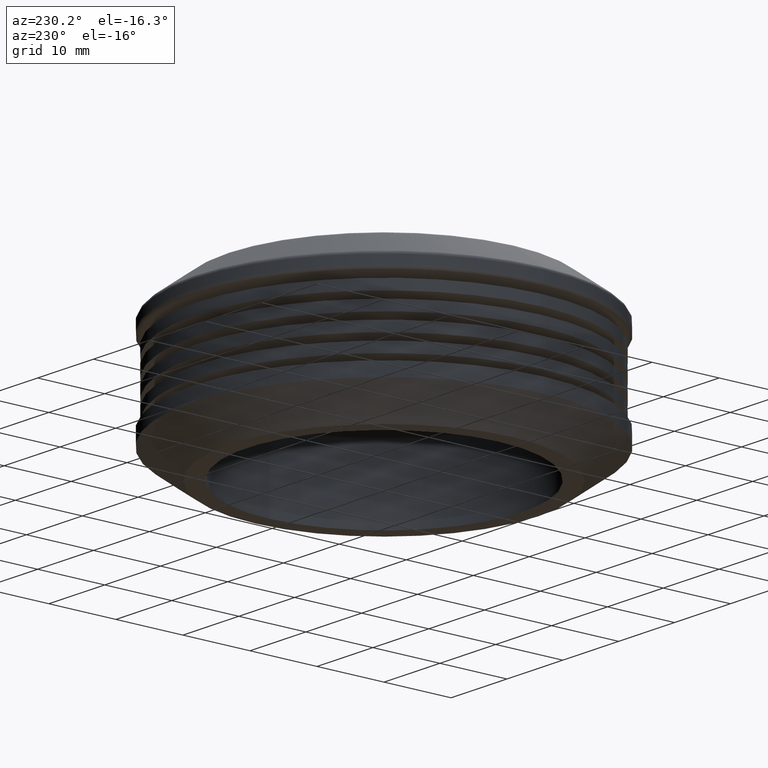
[diagram: clean part render]
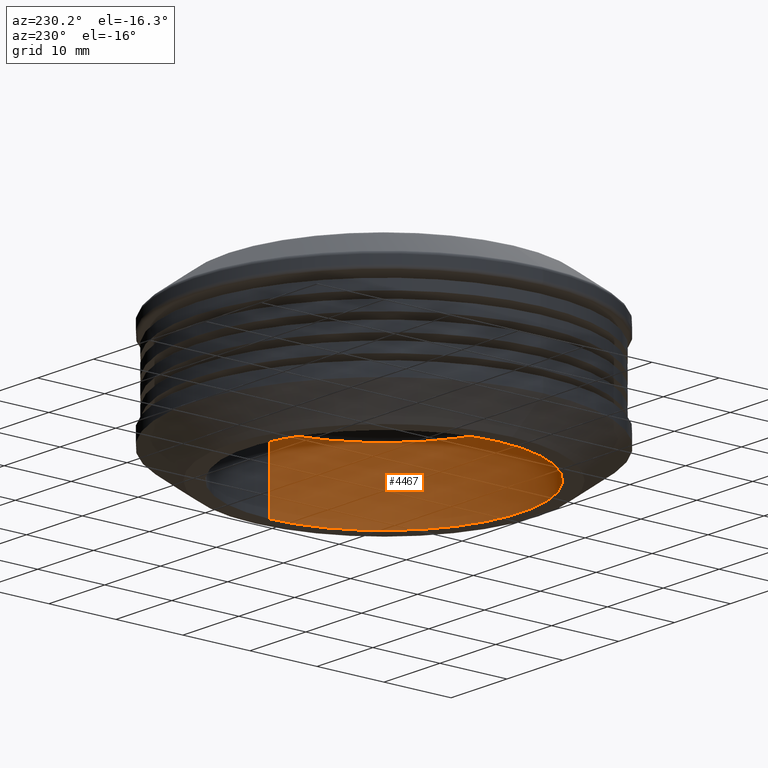
[diagram: same view with one face highlighted and labeled with its STEP entity id]
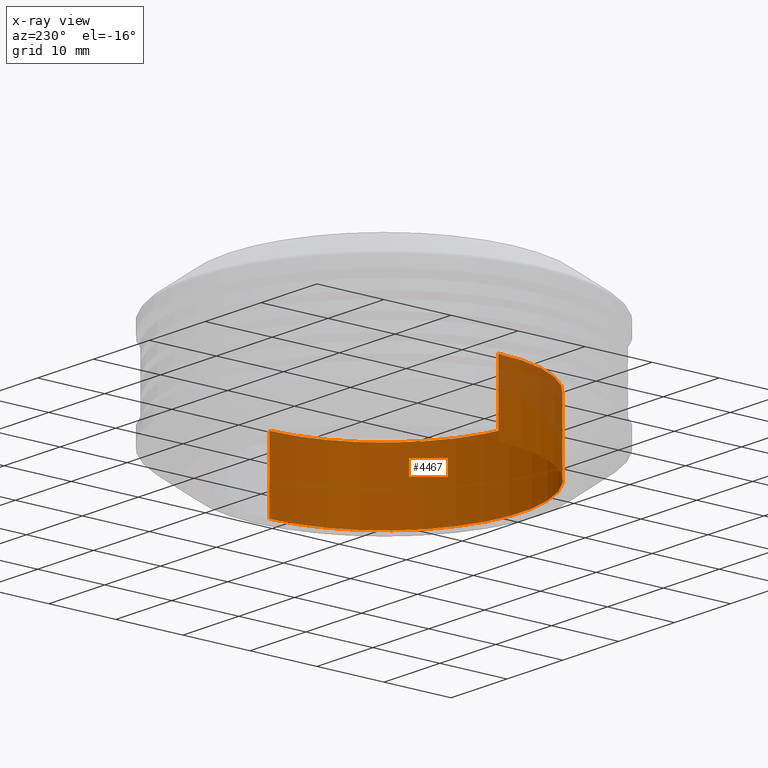
[diagram: x-ray of the same camera — body ghosted, the highlighted face saturated]
A machine part, auxiliary view. The second image highlights one B-rep face of the part: STEP entity #4467.
The next image is the same camera in x-ray: the body ghosted, the highlighted face saturated — about 10% of this face is hidden behind the body in this view.
In plain terms, the highlighted cylindrical surface (partial cylindrical patch) has radius 20.5 mm, axis along (-0, -0, -1).
Its self-contained STEP definition (entity closure, byte-faithful):
#225 = VECTOR ( 'NONE', #14835, 1000.000000000000000 ) ;
#1889 = CARTESIAN_POINT ( 'NONE',  ( -20.50000000000000000, 0.0000000000000000000, -11.00000000000000000 ) ) ;
#2187 = DIRECTION ( 'NONE',  ( 0.0000000000000000000, 0.0000000000000000000, 1.000000000000000000 ) ) ;
#2195 = EDGE_LOOP ( 'NONE', ( #5755, #11024, #6411, #8436 ) ) ;
#3202 = CIRCLE ( 'NONE', #13476, 20.49999999999999600 ) ;
#4467 = ADVANCED_FACE ( 'NONE', ( #13272 ), #12185, .F. ) ;
#4542 = DIRECTION ( 'NONE',  ( -0.0000000000000000000, -0.0000000000000000000, -1.000000000000000000 ) ) ;
#4979 = DIRECTION ( 'NONE',  ( -1.000000000000000000, 0.0000000000000000000, 0.0000000000000000000 ) ) ;
#5405 = EDGE_CURVE ( 'NONE', #6246, #10815, #14492, .T. ) ;
#5708 = DIRECTION ( 'NONE',  ( -1.000000000000000000, 0.0000000000000000000, 0.0000000000000000000 ) ) ;
#5755 = ORIENTED_EDGE ( 'NONE', *, *, #5966, .T. ) ;
#5966 = EDGE_CURVE ( 'NONE', #7181, #6246, #3202, .T. ) ;
#6055 = DIRECTION ( 'NONE',  ( -0.0000000000000000000, -0.0000000000000000000, -1.000000000000000000 ) ) ;
#6246 = VERTEX_POINT ( 'NONE', #12871 ) ;
#6411 = ORIENTED_EDGE ( 'NONE', *, *, #14155, .T. ) ;
#6715 = LINE ( 'NONE', #10315, #225 ) ;
#7181 = VERTEX_POINT ( 'NONE', #10911 ) ;
#8436 = ORIENTED_EDGE ( 'NONE', *, *, #12625, .F. ) ;
#8961 = AXIS2_PLACEMENT_3D ( 'NONE', #9119, #4542, #5708 ) ;
#9119 = CARTESIAN_POINT ( 'NONE',  ( 0.0000000000000000000, 0.0000000000000000000, 0.0000000000000000000 ) ) ;
#9190 = VERTEX_POINT ( 'NONE', #1889 ) ;
#9292 = CARTESIAN_POINT ( 'NONE',  ( 0.0000000000000000000, 0.0000000000000000000, -0.5000000000000000000 ) ) ;
#10315 = CARTESIAN_POINT ( 'NONE',  ( -20.49999999999999600, 0.0000000000000000000, 0.0000000000000000000 ) ) ;
#10507 = CARTESIAN_POINT ( 'NONE',  ( 20.50000000000000000, 2.510525938252074500E-015, -11.00000000000000000 ) ) ;
#10815 = VERTEX_POINT ( 'NONE', #10507 ) ;
#10911 = CARTESIAN_POINT ( 'NONE',  ( -20.49999999999999600, 0.0000000000000000000, -0.5000000000000000000 ) ) ;
#11024 = ORIENTED_EDGE ( 'NONE', *, *, #5405, .T. ) ;
#11361 = CIRCLE ( 'NONE', #14008, 20.50000000000000000 ) ;
#12165 = VECTOR ( 'NONE', #13889, 1000.000000000000000 ) ;
#12185 = CYLINDRICAL_SURFACE ( 'NONE', #8961, 20.49999999999999600 ) ;
#12625 = EDGE_CURVE ( 'NONE', #7181, #9190, #6715, .T. ) ;
#12644 = DIRECTION ( 'NONE',  ( -1.000000000000000000, 0.0000000000000000000, 0.0000000000000000000 ) ) ;
#12871 = CARTESIAN_POINT ( 'NONE',  ( 20.49999999999999600, 2.510525938252074100E-015, -0.5000000000000000000 ) ) ;
#13272 = FACE_OUTER_BOUND ( 'NONE', #2195, .T. ) ;
#13476 = AXIS2_PLACEMENT_3D ( 'NONE', #9292, #2187, #12644 ) ;
#13889 = DIRECTION ( 'NONE',  ( -0.0000000000000000000, -0.0000000000000000000, -1.000000000000000000 ) ) ;
#14008 = AXIS2_PLACEMENT_3D ( 'NONE', #14053, #6055, #4979 ) ;
#14053 = CARTESIAN_POINT ( 'NONE',  ( 0.0000000000000000000, 0.0000000000000000000, -11.00000000000000000 ) ) ;
#14092 = CARTESIAN_POINT ( 'NONE',  ( 20.49999999999999600, 2.510525938252074100E-015, 0.0000000000000000000 ) ) ;
#14155 = EDGE_CURVE ( 'NONE', #10815, #9190, #11361, .T. ) ;
#14492 = LINE ( 'NONE', #14092, #12165 ) ;
#14835 = DIRECTION ( 'NONE',  ( -0.0000000000000000000, -0.0000000000000000000, -1.000000000000000000 ) ) ;